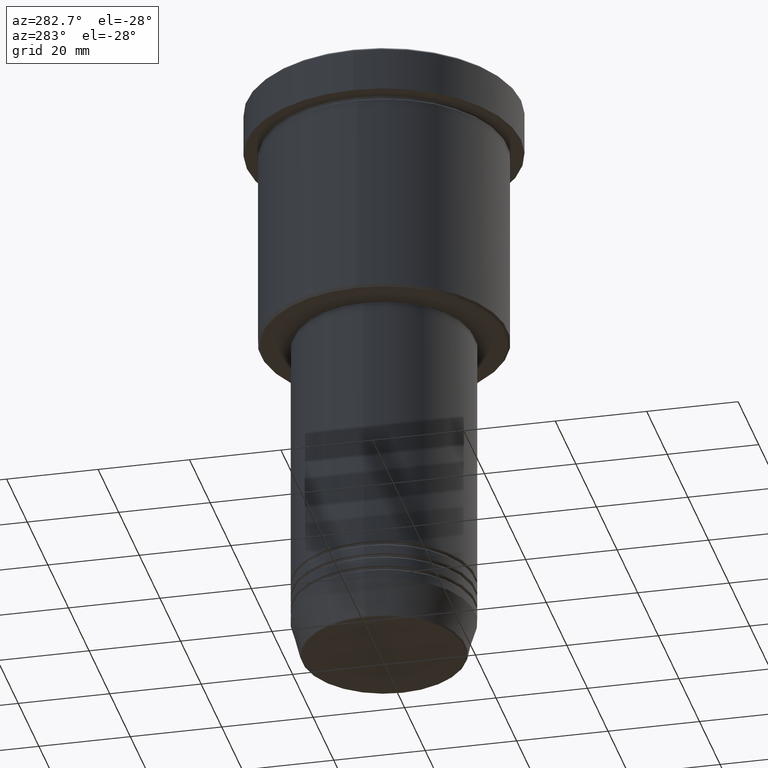
[diagram: clean part render]
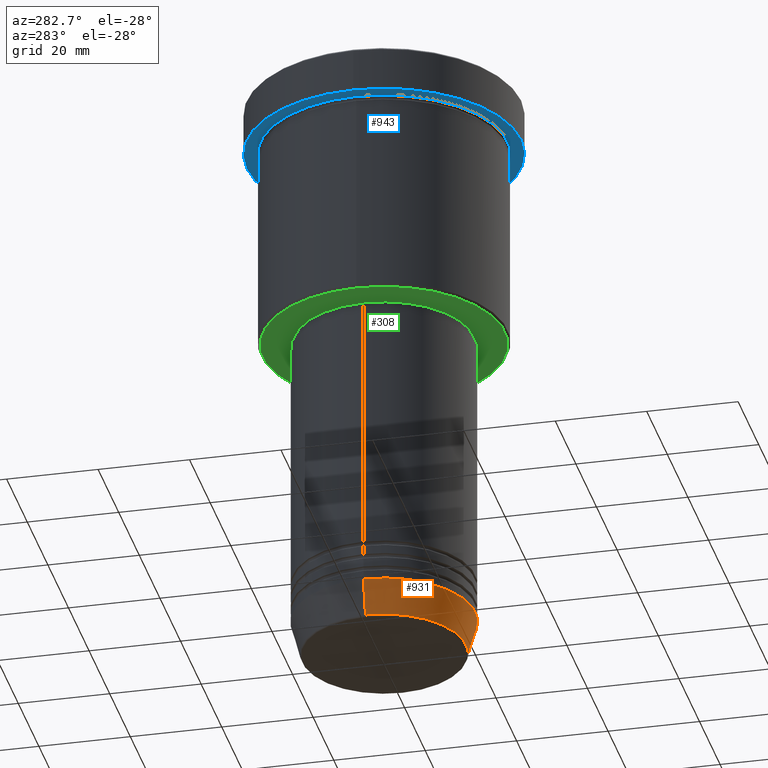
[diagram: same view with three faces highlighted in distinct colors, each labeled with its STEP entity id]
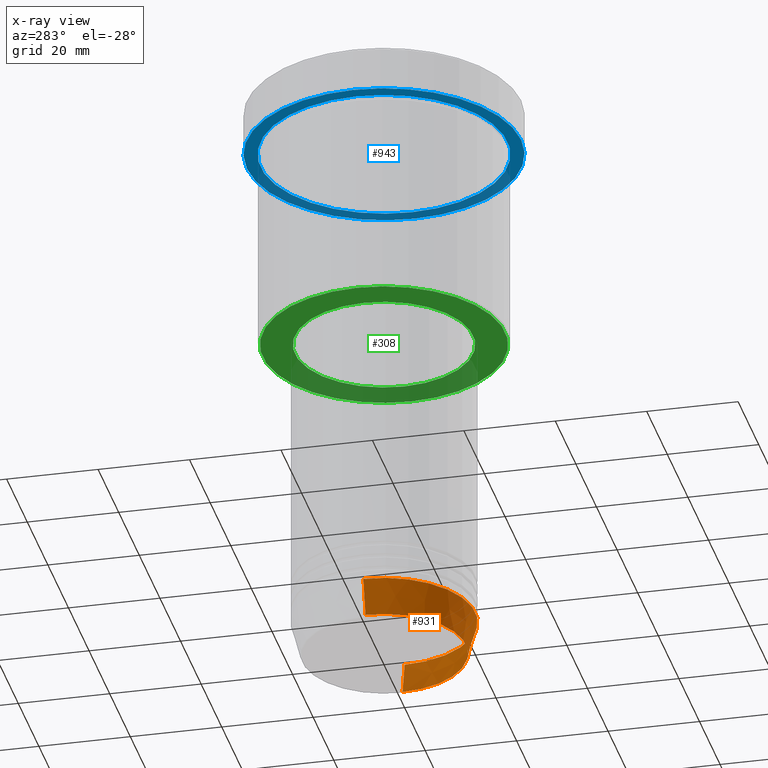
[diagram: x-ray of the same camera — body ghosted, the three highlighted faces saturated]
A machine part, auxiliary view with three faces highlighted in distinct colors.
The next image is the same camera in x-ray (body ghosted, the three faces saturated) — at least one of them is partly hidden behind the body in this view.
Their STEP definitions:

[orange] entity #931 — the highlighted conical surface has half-angle 15 deg.
#21 = CARTESIAN_POINT ( 'NONE',  ( 17.95570587970606269, 0.000000000000000000, -130.6294095225512422 ) ) ;
#84 = EDGE_LOOP ( 'NONE', ( #96, #1059, #536, #1031 ) ) ;
#92 = VECTOR ( 'NONE', #782, 1000.000000000000114 ) ;
#96 = ORIENTED_EDGE ( 'NONE', *, *, #656, .F. ) ;
#116 = DIRECTION ( 'NONE',  ( -0.000000000000000000, -0.000000000000000000, 1.000000000000000000 ) ) ;
#121 = AXIS2_PLACEMENT_3D ( 'NONE', #1030, #116, #130 ) ;
#130 = DIRECTION ( 'NONE',  ( 1.000000000000000000, 0.000000000000000000, 0.000000000000000000 ) ) ;
#177 = DIRECTION ( 'NONE',  ( 1.000000000000000000, 0.000000000000000000, 0.000000000000000000 ) ) ;
#192 = VERTEX_POINT ( 'NONE', #929 ) ;
#223 = DIRECTION ( 'NONE',  ( -0.2588190451025212391, 3.169619151431771721E-17, 0.9659258262890680902 ) ) ;
#228 = VERTEX_POINT ( 'NONE', #21 ) ;
#323 = LINE ( 'NONE', #587, #92 ) ;
#373 = CONICAL_SURFACE ( 'NONE', #411, 20.00000000000000000, 0.2617993877991499629 ) ;
#391 = EDGE_CURVE ( 'NONE', #958, #1076, #973, .T. ) ;
#396 = LINE ( 'NONE', #780, #562 ) ;
#411 = AXIS2_PLACEMENT_3D ( 'NONE', #470, #845, #177 ) ;
#470 = CARTESIAN_POINT ( 'NONE',  ( 0.000000000000000000, 0.000000000000000000, -123.0000000000000000 ) ) ;
#536 = ORIENTED_EDGE ( 'NONE', *, *, #1093, .T. ) ;
#556 = DIRECTION ( 'NONE',  ( -0.000000000000000000, -0.000000000000000000, 1.000000000000000000 ) ) ;
#562 = VECTOR ( 'NONE', #223, 1000.000000000000114 ) ;
#563 = AXIS2_PLACEMENT_3D ( 'NONE', #604, #556, #719 ) ;
#587 = CARTESIAN_POINT ( 'NONE',  ( 20.00000000000000000, 0.000000000000000000, -123.0000000000000000 ) ) ;
#604 = CARTESIAN_POINT ( 'NONE',  ( 0.000000000000000000, 0.000000000000000000, -130.6294095225512422 ) ) ;
#635 = CIRCLE ( 'NONE', #563, 17.95570587970606269 ) ;
#656 = EDGE_CURVE ( 'NONE', #192, #958, #396, .T. ) ;
#719 = DIRECTION ( 'NONE',  ( 1.000000000000000000, 0.000000000000000000, 0.000000000000000000 ) ) ;
#760 = CARTESIAN_POINT ( 'NONE',  ( -20.00000000000000000, 2.449293598294706513E-15, -123.0000000000000000 ) ) ;
#780 = CARTESIAN_POINT ( 'NONE',  ( -20.00000000000000000, 2.449293598294706513E-15, -123.0000000000000000 ) ) ;
#782 = DIRECTION ( 'NONE',  ( 0.2588190451025212391, 0.000000000000000000, 0.9659258262890680902 ) ) ;
#845 = DIRECTION ( 'NONE',  ( -0.000000000000000000, -0.000000000000000000, 1.000000000000000000 ) ) ;
#929 = CARTESIAN_POINT ( 'NONE',  ( -17.95570587970606269, 2.324116685748020582E-15, -130.6294095225512422 ) ) ;
#931 = ADVANCED_FACE ( 'NONE', ( #936 ), #373, .T. ) ;
#936 = FACE_OUTER_BOUND ( 'NONE', #84, .T. ) ;
#958 = VERTEX_POINT ( 'NONE', #760 ) ;
#972 = CARTESIAN_POINT ( 'NONE',  ( 20.00000000000000000, 0.000000000000000000, -123.0000000000000000 ) ) ;
#973 = CIRCLE ( 'NONE', #121, 20.00000000000000000 ) ;
#1030 = CARTESIAN_POINT ( 'NONE',  ( 0.000000000000000000, 0.000000000000000000, -123.0000000000000000 ) ) ;
#1031 = ORIENTED_EDGE ( 'NONE', *, *, #391, .F. ) ;
#1039 = EDGE_CURVE ( 'NONE', #192, #228, #635, .T. ) ;
#1059 = ORIENTED_EDGE ( 'NONE', *, *, #1039, .T. ) ;
#1076 = VERTEX_POINT ( 'NONE', #972 ) ;
#1093 = EDGE_CURVE ( 'NONE', #228, #1076, #323, .T. ) ;

[blue] entity #943 — the highlighted planar face has unit normal (0, 0, -1).
#31 = CARTESIAN_POINT ( 'NONE',  ( 0.000000000000000000, 0.000000000000000000, -9.999999999999992895 ) ) ;
#46 = CIRCLE ( 'NONE', #712, 30.00000000000000000 ) ;
#95 = FACE_OUTER_BOUND ( 'NONE', #709, .T. ) ;
#98 = ORIENTED_EDGE ( 'NONE', *, *, #368, .F. ) ;
#175 = VERTEX_POINT ( 'NONE', #1078 ) ;
#188 = CIRCLE ( 'NONE', #632, 27.00000000000000355 ) ;
#209 = VERTEX_POINT ( 'NONE', #729 ) ;
#239 = EDGE_CURVE ( 'NONE', #209, #286, #1156, .T. ) ;
#286 = VERTEX_POINT ( 'NONE', #295 ) ;
#295 = CARTESIAN_POINT ( 'NONE',  ( -27.00000000000000355, 0.000000000000000000, -9.999999999999992895 ) ) ;
#312 = DIRECTION ( 'NONE',  ( 1.000000000000000000, 0.000000000000000000, 0.000000000000000000 ) ) ;
#368 = EDGE_CURVE ( 'NONE', #175, #739, #46, .T. ) ;
#369 = AXIS2_PLACEMENT_3D ( 'NONE', #31, #1125, #918 ) ;
#423 = DIRECTION ( 'NONE',  ( -0.000000000000000000, -0.000000000000000000, 1.000000000000000000 ) ) ;
#437 = DIRECTION ( 'NONE',  ( -1.000000000000000000, 0.000000000000000000, 0.000000000000000000 ) ) ;
#531 = ORIENTED_EDGE ( 'NONE', *, *, #239, .T. ) ;
#545 = PLANE ( 'NONE',  #840 ) ;
#568 = DIRECTION ( 'NONE',  ( -1.000000000000000000, 0.000000000000000000, -0.000000000000000000 ) ) ;
#608 = EDGE_LOOP ( 'NONE', ( #1168, #531 ) ) ;
#632 = AXIS2_PLACEMENT_3D ( 'NONE', #848, #423, #437 ) ;
#657 = CARTESIAN_POINT ( 'NONE',  ( 0.000000000000000000, 0.000000000000000000, -9.999999999999992895 ) ) ;
#709 = EDGE_LOOP ( 'NONE', ( #98, #1102 ) ) ;
#712 = AXIS2_PLACEMENT_3D ( 'NONE', #873, #786, #955 ) ;
#729 = CARTESIAN_POINT ( 'NONE',  ( 27.00000000000000355, 3.306546357697854128E-15, -9.999999999999992895 ) ) ;
#731 = FACE_BOUND ( 'NONE', #608, .T. ) ;
#739 = VERTEX_POINT ( 'NONE', #1144 ) ;
#776 = DIRECTION ( 'NONE',  ( 0.000000000000000000, 0.000000000000000000, -1.000000000000000000 ) ) ;
#786 = DIRECTION ( 'NONE',  ( -0.000000000000000000, -0.000000000000000000, 1.000000000000000000 ) ) ;
#800 = AXIS2_PLACEMENT_3D ( 'NONE', #657, #1033, #312 ) ;
#832 = CARTESIAN_POINT ( 'NONE',  ( 0.000000000000000000, 30.00000000000000000, -9.999999999999992895 ) ) ;
#840 = AXIS2_PLACEMENT_3D ( 'NONE', #832, #776, #568 ) ;
#848 = CARTESIAN_POINT ( 'NONE',  ( 0.000000000000000000, 0.000000000000000000, -9.999999999999992895 ) ) ;
#864 = EDGE_CURVE ( 'NONE', #286, #209, #188, .T. ) ;
#873 = CARTESIAN_POINT ( 'NONE',  ( 0.000000000000000000, 0.000000000000000000, -9.999999999999992895 ) ) ;
#918 = DIRECTION ( 'NONE',  ( -1.000000000000000000, 0.000000000000000000, 0.000000000000000000 ) ) ;
#943 = ADVANCED_FACE ( 'NONE', ( #731, #95 ), #545, .T. ) ;
#955 = DIRECTION ( 'NONE',  ( 1.000000000000000000, 0.000000000000000000, 0.000000000000000000 ) ) ;
#1012 = CIRCLE ( 'NONE', #800, 30.00000000000000000 ) ;
#1014 = EDGE_CURVE ( 'NONE', #739, #175, #1012, .T. ) ;
#1033 = DIRECTION ( 'NONE',  ( -0.000000000000000000, -0.000000000000000000, 1.000000000000000000 ) ) ;
#1078 = CARTESIAN_POINT ( 'NONE',  ( 30.00000000000000000, 0.000000000000000000, -9.999999999999992895 ) ) ;
#1102 = ORIENTED_EDGE ( 'NONE', *, *, #1014, .F. ) ;
#1125 = DIRECTION ( 'NONE',  ( -0.000000000000000000, -0.000000000000000000, 1.000000000000000000 ) ) ;
#1144 = CARTESIAN_POINT ( 'NONE',  ( -30.00000000000000000, 3.673940397442059178E-15, -9.999999999999992895 ) ) ;
#1156 = CIRCLE ( 'NONE', #369, 27.00000000000000355 ) ;
#1168 = ORIENTED_EDGE ( 'NONE', *, *, #864, .T. ) ;

[green] entity #308 — the highlighted planar face has unit normal (0, 0, -1).
#24 = EDGE_CURVE ( 'NONE', #1122, #572, #479, .T. ) ;
#62 = CARTESIAN_POINT ( 'NONE',  ( 0.000000000000000000, 0.000000000000000000, -55.99999999999999289 ) ) ;
#120 = AXIS2_PLACEMENT_3D ( 'NONE', #1175, #1000, #179 ) ;
#139 = EDGE_CURVE ( 'NONE', #572, #1122, #1029, .T. ) ;
#179 = DIRECTION ( 'NONE',  ( 1.000000000000000000, 0.000000000000000000, 0.000000000000000000 ) ) ;
#187 = DIRECTION ( 'NONE',  ( -0.000000000000000000, -0.000000000000000000, 1.000000000000000000 ) ) ;
#235 = CARTESIAN_POINT ( 'NONE',  ( 26.49999999999998224, 0.000000000000000000, -55.99999999999999289 ) ) ;
#257 = DIRECTION ( 'NONE',  ( 0.000000000000000000, 0.000000000000000000, -1.000000000000000000 ) ) ;
#269 = VERTEX_POINT ( 'NONE', #235 ) ;
#292 = CARTESIAN_POINT ( 'NONE',  ( 19.50000000000000000, 0.000000000000000000, -55.99999999999999289 ) ) ;
#308 = ADVANCED_FACE ( 'NONE', ( #861, #399 ), #1128, .T. ) ;
#335 = CIRCLE ( 'NONE', #481, 26.49999999999998224 ) ;
#348 = VERTEX_POINT ( 'NONE', #960 ) ;
#399 = FACE_BOUND ( 'NONE', #603, .T. ) ;
#431 = AXIS2_PLACEMENT_3D ( 'NONE', #976, #674, #680 ) ;
#472 = ORIENTED_EDGE ( 'NONE', *, *, #502, .T. ) ;
#477 = CARTESIAN_POINT ( 'NONE',  ( 0.000000000000000000, 0.000000000000000000, -55.99999999999999289 ) ) ;
#479 = CIRCLE ( 'NONE', #876, 19.50000000000000000 ) ;
#481 = AXIS2_PLACEMENT_3D ( 'NONE', #62, #257, #875 ) ;
#489 = DIRECTION ( 'NONE',  ( 0.000000000000000000, 0.000000000000000000, -1.000000000000000000 ) ) ;
#502 = EDGE_CURVE ( 'NONE', #348, #269, #335, .T. ) ;
#572 = VERTEX_POINT ( 'NONE', #292 ) ;
#603 = EDGE_LOOP ( 'NONE', ( #779, #749 ) ) ;
#642 = DIRECTION ( 'NONE',  ( 1.000000000000000000, 0.000000000000000000, 0.000000000000000000 ) ) ;
#674 = DIRECTION ( 'NONE',  ( 0.000000000000000000, 0.000000000000000000, -1.000000000000000000 ) ) ;
#680 = DIRECTION ( 'NONE',  ( -1.000000000000000000, 0.000000000000000000, -0.000000000000000000 ) ) ;
#685 = EDGE_LOOP ( 'NONE', ( #957, #472 ) ) ;
#694 = CIRCLE ( 'NONE', #1084, 26.49999999999998224 ) ;
#749 = ORIENTED_EDGE ( 'NONE', *, *, #24, .T. ) ;
#779 = ORIENTED_EDGE ( 'NONE', *, *, #139, .T. ) ;
#825 = CARTESIAN_POINT ( 'NONE',  ( 0.000000000000000000, 0.000000000000000000, -55.99999999999999289 ) ) ;
#830 = EDGE_CURVE ( 'NONE', #269, #348, #694, .T. ) ;
#861 = FACE_OUTER_BOUND ( 'NONE', #685, .T. ) ;
#875 = DIRECTION ( 'NONE',  ( -1.000000000000000000, 0.000000000000000000, 0.000000000000000000 ) ) ;
#876 = AXIS2_PLACEMENT_3D ( 'NONE', #825, #187, #642 ) ;
#957 = ORIENTED_EDGE ( 'NONE', *, *, #830, .T. ) ;
#960 = CARTESIAN_POINT ( 'NONE',  ( -26.49999999999998224, 3.275930187719168763E-15, -55.99999999999999289 ) ) ;
#964 = CARTESIAN_POINT ( 'NONE',  ( -19.50000000000000000, 2.388061258337338939E-15, -55.99999999999999289 ) ) ;
#976 = CARTESIAN_POINT ( 'NONE',  ( 0.000000000000000000, 27.00000000000000355, -55.99999999999999289 ) ) ;
#1000 = DIRECTION ( 'NONE',  ( -0.000000000000000000, -0.000000000000000000, 1.000000000000000000 ) ) ;
#1029 = CIRCLE ( 'NONE', #120, 19.50000000000000000 ) ;
#1047 = DIRECTION ( 'NONE',  ( -1.000000000000000000, 0.000000000000000000, 0.000000000000000000 ) ) ;
#1084 = AXIS2_PLACEMENT_3D ( 'NONE', #477, #489, #1047 ) ;
#1122 = VERTEX_POINT ( 'NONE', #964 ) ;
#1128 = PLANE ( 'NONE',  #431 ) ;
#1175 = CARTESIAN_POINT ( 'NONE',  ( 0.000000000000000000, 0.000000000000000000, -55.99999999999999289 ) ) ;